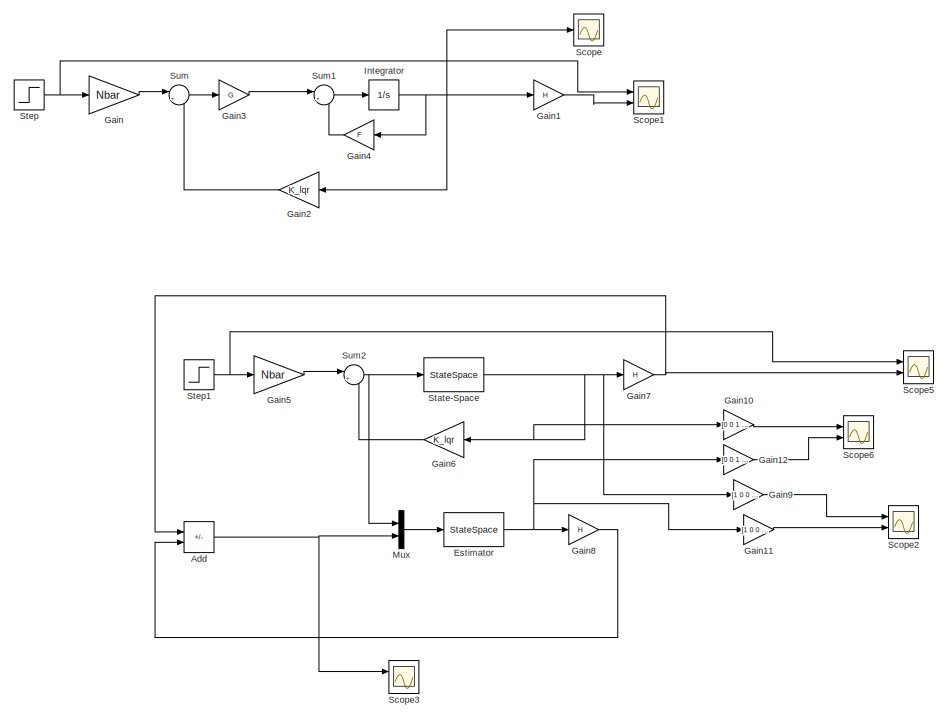
[diagram: root canvas - part 1/3, top left region]
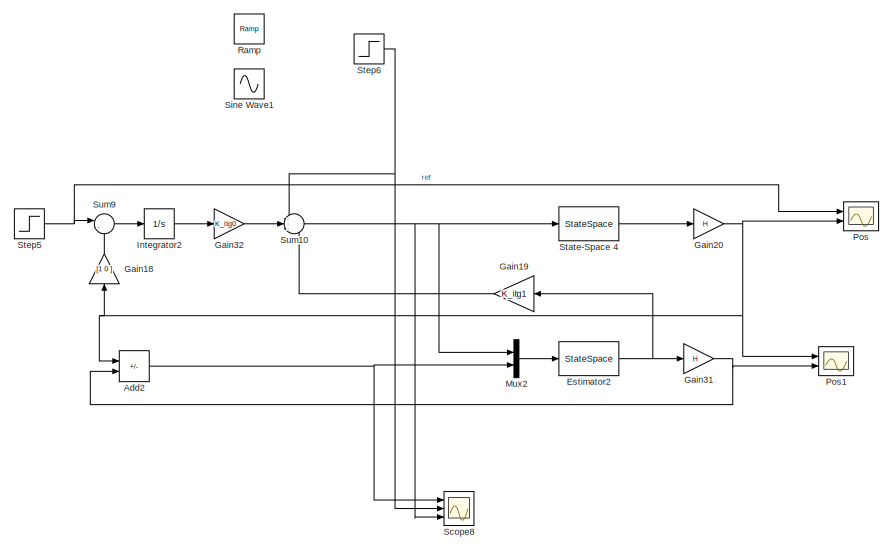
[diagram: root canvas - part 2/3, top right region]
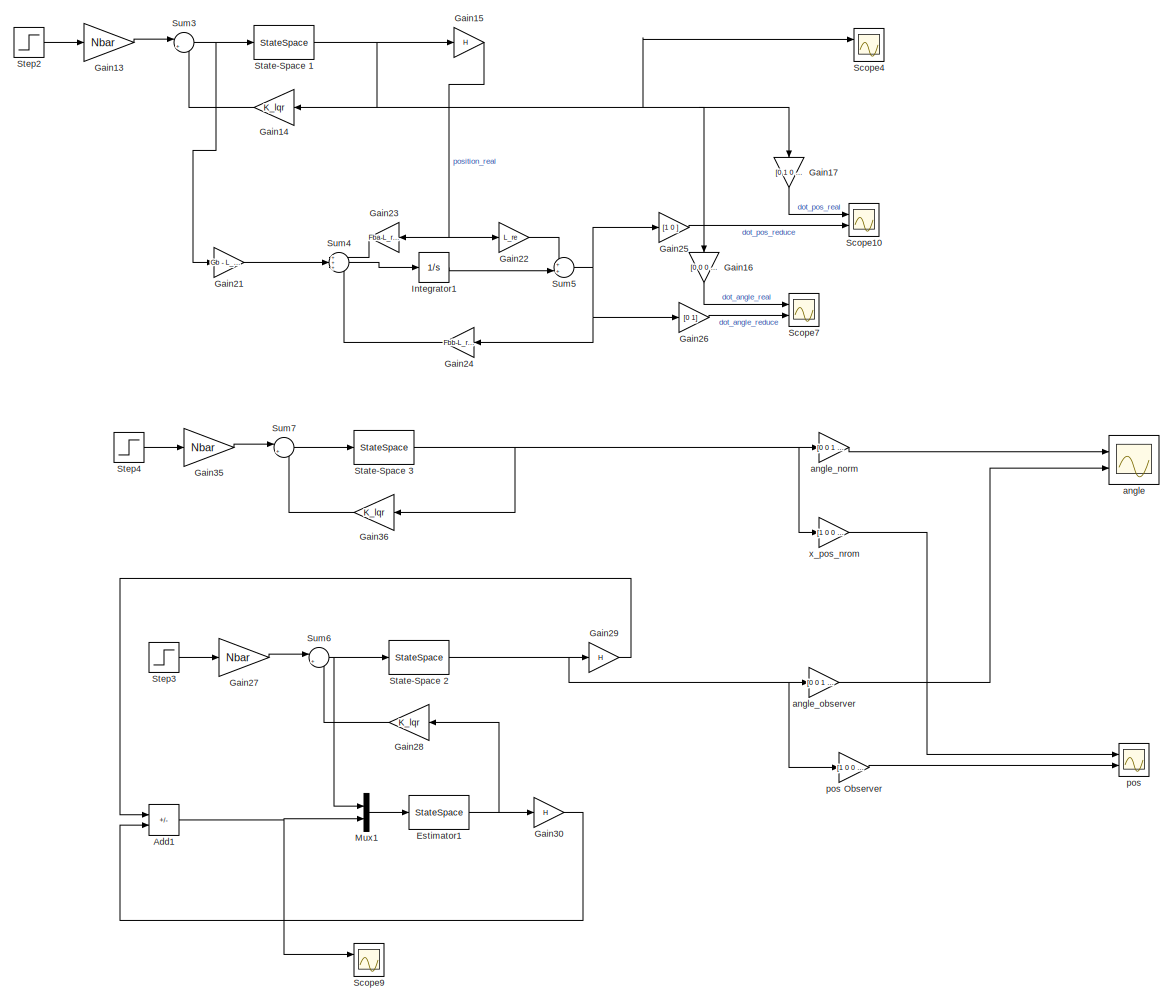
[diagram: root canvas - part 3/3, bottom left region]
MODEL slx_a55ec6fa7b17
KIND model
CONFIG AbsTol = auto
CONFIG EnableMultiTasking = off
CONFIG FixedStep = auto
CONFIG MaxStep = auto
CONFIG MinStep = auto
CONFIG RelTol = 1e-3
CONFIG SampleTimeConstraint = Unconstrained
CONFIG Solver = VariableStepAuto
CONFIG SolverName = VariableStepAuto
CONFIG StartTime = 0.0
CONFIG StopTime = 5
BLOCK [StateSpace]  Estimator
  A = F
  B = [G L]
  C = eye(4)
  D = zeros(4,3)
  InitialCondition = [5 0 1 0]
  Ports = [1, 1]
BLOCK [StateSpace]  Estimator1
  A = F
  B = [G L]
  C = eye(4)
  D = zeros(4,3)
  InitialCondition = [0 0 0 0]
  Ports = [1, 1]
BLOCK [StateSpace]  Estimator2
  A = F
  B = [G L]
  C = eye(4)
  D = zeros(4,3)
  InitialCondition = [0 0 0 0]
  Ports = [1, 1]
BLOCK [StateSpace]  State-Space 
  A = F
  B = G
  C = eye(4)
  D = zeros(4,1)
  InitialCondition = [0 0 0 0]
  Ports = [1, 1]
BLOCK [StateSpace]  State-Space 1
  A = F
  B = G
  C = eye(4)
  D = zeros(4,1)
  InitialCondition = [0 0 0 0]
  Ports = [1, 1]
BLOCK [StateSpace]  State-Space 2
  A = F
  B = G
  C = eye(4)
  D = zeros(4,1)
  InitialCondition = [1 0 0 0]
  Ports = [1, 1]
BLOCK [StateSpace]  State-Space 3
  A = F
  B = G
  C = eye(4)
  D = zeros(4,1)
  InitialCondition = [0 0 0 0]
  Ports = [1, 1]
BLOCK [StateSpace]  State-Space 4
  A = F
  B = G
  C = [1 0 0 0; 0 1 0 0; 0 0 1 0; 0 0 1 0]
  D = zeros(4,1)
  InitialCondition = [0 0 0 0]
  Ports = [1, 1]
BLOCK [Sum] Add
  IconShape = rectangular
  Inputs = +-
  Ports = [2, 1]
BLOCK [Sum] Add1
  IconShape = rectangular
  Inputs = +-
  Ports = [2, 1]
BLOCK [Sum] Add2
  IconShape = rectangular
  Inputs = +-
  Ports = [2, 1]
BLOCK [Gain] Gain
  Gain = Nbar
BLOCK [Gain] Gain1
  Gain = H
  Multiplication = Matrix(K*u)
BLOCK [Gain] Gain10
  Gain = [0 0 1 0 ]
  Multiplication = Matrix(K*u)
BLOCK [Gain] Gain11
  Gain = [1 0 0 0]
  Multiplication = Matrix(K*u)
BLOCK [Gain] Gain12
  Gain = [0 0 1 0 ]
  Multiplication = Matrix(K*u)
BLOCK [Gain] Gain13
  Gain = Nbar
BLOCK [Gain] Gain14
  Gain = K_lqr
  Multiplication = Matrix(K*u)
  NameLocation = top
BLOCK [Gain] Gain15
  Gain = H
  Multiplication = Matrix(K*u)
BLOCK [Gain] Gain16
  Gain = [0 0 0 1]
  Multiplication = Matrix(K*u)
  NameLocation = left
BLOCK [Gain] Gain17
  Gain = [0 1 0 0 ]
  Multiplication = Matrix(K*u)
  NameLocation = left
BLOCK [Gain] Gain18
  Gain = [1 0 ]
  Multiplication = Matrix(K*u)
  NameLocation = right
BLOCK [Gain] Gain19
  Gain = K_itg1
  Multiplication = Matrix(K*u)
  NameLocation = top
BLOCK [Gain] Gain2
  Gain = K_lqr
  Multiplication = Matrix(K*u)
  NameLocation = top
BLOCK [Gain] Gain20
  Gain = H
  Multiplication = Matrix(K*u)
BLOCK [Gain] Gain21
  Gain = Gb - L_re*Ga
  Multiplication = Matrix(K*u)
BLOCK [Gain] Gain22
  Gain = L_re
  Multiplication = Matrix(K*u)
BLOCK [Gain] Gain23
  Gain = Fba-L_re*Faa
  Multiplication = Matrix(K*u)
  NameLocation = top
BLOCK [Gain] Gain24
  Gain = Fbb-L_re*Fab
  Multiplication = Matrix(K*u)
  NameLocation = top
BLOCK [Gain] Gain25
  Gain = [1 0 ]
  Multiplication = Matrix(K*u)
BLOCK [Gain] Gain26
  Gain = [0 1]
  Multiplication = Matrix(K*u)
BLOCK [Gain] Gain27
  Gain = Nbar
BLOCK [Gain] Gain28
  Gain = K_lqr
  Multiplication = Matrix(K*u)
  NameLocation = top
BLOCK [Gain] Gain29
  Gain = H
  Multiplication = Matrix(K*u)
BLOCK [Gain] Gain3
  Gain = G
  Multiplication = Matrix(K*u)
BLOCK [Gain] Gain30
  Gain = H
  Multiplication = Matrix(K*u)
BLOCK [Gain] Gain31
  Gain = H
  Multiplication = Matrix(K*u)
BLOCK [Gain] Gain32
  Gain = K_itg0
  Multiplication = Matrix(K*u)
BLOCK [Gain] Gain35
  Gain = Nbar
BLOCK [Gain] Gain36
  Gain = K_lqr
  Multiplication = Matrix(K*u)
  NameLocation = top
BLOCK [Gain] Gain4
  Gain = F
  Multiplication = Matrix(K*u)
  NameLocation = top
BLOCK [Gain] Gain5
  Gain = Nbar
BLOCK [Gain] Gain6
  Gain = K_lqr
  Multiplication = Matrix(K*u)
  NameLocation = top
BLOCK [Gain] Gain7
  Gain = H
  Multiplication = Matrix(K*u)
BLOCK [Gain] Gain8
  Gain = H
  Multiplication = Matrix(K*u)
BLOCK [Gain] Gain9
  Gain = [1 0 0 0]
  Multiplication = Matrix(K*u)
BLOCK [Integrator] Integrator
  Ports = [1, 1]
BLOCK [Integrator] Integrator1
  Ports = [1, 1]
BLOCK [Integrator] Integrator2
  Ports = [1, 1]
BLOCK [Mux] Mux
  DisplayOption = bar
  Inputs = 2
  Ports = [2, 1]
BLOCK [Mux] Mux1
  DisplayOption = bar
  Inputs = 2
  Ports = [2, 1]
BLOCK [Mux] Mux2
  DisplayOption = bar
  Inputs = 2
  Ports = [2, 1]
BLOCK [Scope] Pos
  Floating = off
  NumInputPorts = 2
  Ports = [2]
  ScopeSpecificationString = Simulink.scopes.TimeScopeBlockCfg('CurrentConfiguration', extmgr.ConfigurationSet(extmgr.Configuration('Core','General UI',true,'FigureColor',[1 1 1]),extmgr.Configuration('Core','Source UI',true),extmgr.Configuration('Sources','WiredSimulink',true,'DataLoggingVariableName','ScopeData8'),extmgr.Configuration('Visuals','Time Domain',true,'SerializedDisplays',{struct('MinYLimReal','4.59875','MaxYLim...<+1893ch>
BLOCK [Scope] Pos1
  Floating = off
  NumInputPorts = 2
  Ports = [2]
  ScopeSpecificationString = Simulink.scopes.TimeScopeBlockCfg('CurrentConfiguration', extmgr.ConfigurationSet(extmgr.Configuration('Core','General UI',true,'FigureColor',[1 1 1]),extmgr.Configuration('Core','Source UI',true),extmgr.Configuration('Sources','WiredSimulink',true,'DataLoggingVariableName','ScopeData1'),extmgr.Configuration('Visuals','Time Domain',true,'SerializedDisplays',{struct('MinYLimReal','-1821545389564943...<+2043ch>
BLOCK [Reference] Ramp  REF=simulink/Sources/Ramp
  Ports = [0, 1]
  SourceBlock = simulink/Sources/Ramp
  SourceProductBaseCode = SL
  SourceType = Ramp
BLOCK [Scope] Scope
  Floating = off
  NumInputPorts = 1
  Ports = [1]
  ScopeSpecificationString = Simulink.scopes.TimeScopeBlockCfg('CurrentConfiguration', extmgr.ConfigurationSet(extmgr.Configuration('Core','General UI',true),extmgr.Configuration('Core','Source UI',true),extmgr.Configuration('Sources','WiredSimulink',true),extmgr.Configuration('Visuals','Time Domain',true,'SerializedDisplays',{struct('MinYLimReal','-9.64899','MaxYLimReal','4.57904','YLabelReal','','MinYLimMag','0.00000','MaxY...<+1594ch>
BLOCK [Scope] Scope1
  Floating = off
  NumInputPorts = 2
  Ports = [2]
  ScopeSpecificationString = Simulink.scopes.TimeScopeBlockCfg('CurrentConfiguration', extmgr.ConfigurationSet(extmgr.Configuration('Core','General UI',true,'FigureColor',[1 1 1]),extmgr.Configuration('Core','Source UI',true),extmgr.Configuration('Sources','WiredSimulink',true,'DataLoggingVariableName','ScopeData1'),extmgr.Configuration('Visuals','Time Domain',true,'SerializedDisplays',{struct('MinYLimReal','-1.03435','MaxYLi...<+2226ch>
BLOCK [Scope] Scope10
  Floating = off
  NumInputPorts = 2
  Ports = [2]
  ScopeSpecificationString = Simulink.scopes.TimeScopeBlockCfg('CurrentConfiguration', extmgr.ConfigurationSet(extmgr.Configuration('Core','General UI',true,'FigureColor',[1 1 1]),extmgr.Configuration('Core','Source UI',true),extmgr.Configuration('Sources','WiredSimulink',true,'DataLoggingVariableName','ScopeData2'),extmgr.Configuration('Visuals','Time Domain',true,'SerializedDisplays',{struct('MinYLimReal','-19.36266','MaxYL...<+1906ch>
BLOCK [Scope] Scope2
  Floating = off
  NumInputPorts = 2
  Ports = [2]
  ScopeSpecificationString = Simulink.scopes.TimeScopeBlockCfg('CurrentConfiguration', extmgr.ConfigurationSet(extmgr.Configuration('Core','General UI',true,'FigureColor',[1 1 1]),extmgr.Configuration('Core','Source UI',true),extmgr.Configuration('Sources','WiredSimulink',true,'DataLoggingVariableName','ScopeData4'),extmgr.Configuration('Visuals','Time Domain',true,'SerializedDisplays',{struct('MinYLimReal','-2.32078','MaxYLi...<+1861ch>
BLOCK [Scope] Scope3
  Floating = off
  NumInputPorts = 2
  Ports = [2]
  ScopeSpecificationString = Simulink.scopes.TimeScopeBlockCfg('CurrentConfiguration', extmgr.ConfigurationSet(extmgr.Configuration('Core','General UI',true,'FigureColor',[1 1 1]),extmgr.Configuration('Core','Source UI',true),extmgr.Configuration('Sources','WiredSimulink',true,'DataLoggingVariableName','ScopeData1'),extmgr.Configuration('Visuals','Time Domain',true,'SerializedDisplays',{struct('MinYLimReal','-5.74672','MaxYLi...<+1868ch>
BLOCK [Scope] Scope4
  Floating = off
  NumInputPorts = 2
  Ports = [2]
  ScopeSpecificationString = Simulink.scopes.TimeScopeBlockCfg('CurrentConfiguration', extmgr.ConfigurationSet(extmgr.Configuration('Core','General UI',true),extmgr.Configuration('Core','Source UI',true),extmgr.Configuration('Sources','WiredSimulink',true,'DataLoggingVariableName','ScopeData1'),extmgr.Configuration('Visuals','Time Domain',true,'SerializedDisplays',{struct('MinYLimReal','-0.0000000003','MaxYLimReal','0.0000000...<+1623ch>
BLOCK [Scope] Scope5
  Floating = off
  NumInputPorts = 2
  Ports = [2]
  ScopeSpecificationString = Simulink.scopes.TimeScopeBlockCfg('CurrentConfiguration', extmgr.ConfigurationSet(extmgr.Configuration('Core','General UI',true,'FigureColor',[1 1 1]),extmgr.Configuration('Core','Source UI',true),extmgr.Configuration('Sources','WiredSimulink',true,'DataLoggingVariableName','ScopeData3'),extmgr.Configuration('Visuals','Time Domain',true,'SerializedDisplays',{struct('MinYLimReal','-5.18347','MaxYLi...<+2146ch>
BLOCK [Scope] Scope6
  Floating = off
  NumInputPorts = 2
  Ports = [2]
  ScopeSpecificationString = Simulink.scopes.TimeScopeBlockCfg('CurrentConfiguration', extmgr.ConfigurationSet(extmgr.Configuration('Core','General UI',true,'FigureColor',[1 1 1]),extmgr.Configuration('Core','Source UI',true),extmgr.Configuration('Sources','WiredSimulink',true,'DataLoggingVariableName','ScopeData5'),extmgr.Configuration('Visuals','Time Domain',true,'SerializedDisplays',{struct('MinYLimReal','-4.76509','MaxYLi...<+1885ch>
BLOCK [Scope] Scope7
  Floating = off
  NumInputPorts = 2
  Ports = [2]
  ScopeSpecificationString = Simulink.scopes.TimeScopeBlockCfg('CurrentConfiguration', extmgr.ConfigurationSet(extmgr.Configuration('Core','General UI',true,'FigureColor',[1 1 1]),extmgr.Configuration('Core','Source UI',true),extmgr.Configuration('Sources','WiredSimulink',true,'DataLoggingVariableName','ScopeData5'),extmgr.Configuration('Visuals','Time Domain',true,'SerializedDisplays',{struct('MinYLimReal','-97.52216','MaxYL...<+1910ch>
BLOCK [Scope] Scope8
  Floating = off
  NumInputPorts = 3
  Ports = [3]
  ScopeSpecificationString = Simulink.scopes.TimeScopeBlockCfg('CurrentConfiguration', extmgr.ConfigurationSet(extmgr.Configuration('Core','General UI',true,'FigureColor',[1 1 1]),extmgr.Configuration('Core','Source UI',true),extmgr.Configuration('Sources','WiredSimulink',true,'DataLoggingVariableName','ScopeData3'),extmgr.Configuration('Visuals','Time Domain',true,'SerializedDisplays',{struct('MinYLimReal','-193.5581','MaxYL...<+1913ch>
BLOCK [Scope] Scope9
  Floating = off
  NumInputPorts = 2
  Ports = [2]
  ScopeSpecificationString = Simulink.scopes.TimeScopeBlockCfg('CurrentConfiguration', extmgr.ConfigurationSet(extmgr.Configuration('Core','General UI',true,'FigureColor',[1 1 1]),extmgr.Configuration('Core','Source UI',true),extmgr.Configuration('Sources','WiredSimulink',true,'DataLoggingVariableName','ScopeData7'),extmgr.Configuration('Visuals','Time Domain',true,'SerializedDisplays',{struct('MinYLimReal','-5.74672','MaxYLi...<+1868ch>
BLOCK [Sin] Sine Wave1
  Amplitude = 50
  Frequency = 10
  Ports = [0, 1]
  SampleTime = 0
BLOCK [Step] Step
  After = [1 0 0 0]
  SampleTime = 0
  Time = 0
BLOCK [Step] Step1
  After = 5
  SampleTime = 0
  Time = 0
BLOCK [Step] Step2
  After = 5
  SampleTime = 0
  Time = 0
BLOCK [Step] Step3
  After = 5
  SampleTime = 0
  Time = 0
BLOCK [Step] Step4
  After = 5
  SampleTime = 0
  Time = 0
BLOCK [Step] Step5
  After = 5
  SampleTime = 0
  Time = 0
BLOCK [Step] Step6
  After = 50
  SampleTime = 0
BLOCK [Sum] Sum
  Inputs = |+-
  Ports = [2, 1]
BLOCK [Sum] Sum1
  Inputs = |++
  Ports = [2, 1]
BLOCK [Sum] Sum10
  Inputs = ---
  Ports = [3, 1]
BLOCK [Sum] Sum2
  Inputs = |+-
  Ports = [2, 1]
BLOCK [Sum] Sum3
  Inputs = |+-
  Ports = [2, 1]
BLOCK [Sum] Sum4
  Inputs = +++
  Ports = [3, 1]
BLOCK [Sum] Sum5
  Inputs = ++|
  Ports = [2, 1]
BLOCK [Sum] Sum6
  Inputs = |+-
  Ports = [2, 1]
BLOCK [Sum] Sum7
  Inputs = |+-
  Ports = [2, 1]
BLOCK [Sum] Sum9
  Inputs = |-+
  Ports = [2, 1]
BLOCK [Scope] angle
  Floating = off
  NumInputPorts = 2
  Ports = [2]
  ScopeSpecificationString = Simulink.scopes.TimeScopeBlockCfg('CurrentConfiguration', extmgr.ConfigurationSet(extmgr.Configuration('Core','General UI',true,'FigureColor',[1 1 1]),extmgr.Configuration('Core','Source UI',true),extmgr.Configuration('Sources','WiredSimulink',true,'DataLoggingVariableName','ScopeData4'),extmgr.Configuration('Visuals','Time Domain',true,'SerializedDisplays',{struct('MinYLimReal','-26.25014','MaxYL...<+1905ch>
BLOCK [Gain] angle_norm
  Gain = [0 0 1 0 ]
  Multiplication = Matrix(K*u)
BLOCK [Gain] angle_observer
  Gain = [0 0 1 0 ]
  Multiplication = Matrix(K*u)
BLOCK [Scope] pos
  Floating = off
  NumInputPorts = 2
  Ports = [2]
  ScopeSpecificationString = Simulink.scopes.TimeScopeBlockCfg('CurrentConfiguration', extmgr.ConfigurationSet(extmgr.Configuration('Core','General UI',true,'FigureColor',[1 1 1]),extmgr.Configuration('Core','Source UI',true),extmgr.Configuration('Sources','WiredSimulink',true,'DataLoggingVariableName','ScopeData6'),extmgr.Configuration('Visuals','Time Domain',true,'SerializedDisplays',{struct('MinYLimReal','-2.25939','MaxYLi...<+1897ch>
BLOCK [Gain] pos Observer
  Gain = [1 0 0 0]
  Multiplication = Matrix(K*u)
BLOCK [Gain] x_pos_nrom
  Gain = [1 0 0 0]
  Multiplication = Matrix(K*u)
NET  Estimator1:1 -> Gain28:1, Gain30:1
NET  Estimator2:1 -> Gain19:1, Gain31:1
NET  Estimator:1 -> Gain11:1, Gain12:1, Gain8:1
NET  State-Space 1:1 -> Gain14:1, Gain15:1, Gain16:1, Gain17:1, Scope4:1
NET  State-Space 2:1 -> Gain29:1, angle_observer:1, pos Observer:1
NET  State-Space 3:1 -> Gain36:1, angle_norm:1, x_pos_nrom:1
LINE  State-Space 4:1 -> Gain20:1
NET  State-Space :1 -> Gain10:1, Gain6:1, Gain7:1, Gain9:1
NET Add1:1 -> Mux1:2, Scope9:1
NET Add2:1 -> Mux2:2, Scope8:1
NET Add:1 -> Mux:2, Scope3:1
LINE Gain10:1 -> Scope6:1
LINE Gain11:1 -> Scope2:2
LINE Gain12:1 -> Scope6:2
LINE Gain13:1 -> Sum3:1
LINE Gain14:1 -> Sum3:2
NET Gain15:1 -> Gain22:1, Gain23:1
LINE Gain16:1 -> Scope7:1
LINE Gain17:1 -> Scope10:1
LINE Gain18:1 -> Sum9:2
LINE Gain19:1 -> Sum10:3
LINE Gain1:1 -> Scope1:2
NET Gain20:1 -> Add2:1, Gain18:1, Pos1:1, Pos:2
LINE Gain21:1 -> Sum4:2
LINE Gain22:1 -> Sum5:1
LINE Gain23:1 -> Sum4:1
LINE Gain24:1 -> Sum4:3
LINE Gain25:1 -> Scope10:2
LINE Gain26:1 -> Scope7:2
LINE Gain27:1 -> Sum6:1
LINE Gain28:1 -> Sum6:2
LINE Gain29:1 -> Add1:1
LINE Gain2:1 -> Sum:2
LINE Gain30:1 -> Add1:2
NET Gain31:1 -> Add2:2, Pos1:2
LINE Gain32:1 -> Sum10:2
LINE Gain35:1 -> Sum7:1
LINE Gain36:1 -> Sum7:2
LINE Gain3:1 -> Sum1:1
LINE Gain4:1 -> Sum1:2
LINE Gain5:1 -> Sum2:1
LINE Gain6:1 -> Sum2:2
NET Gain7:1 -> Add:1, Scope5:2
LINE Gain8:1 -> Add:2
LINE Gain9:1 -> Scope2:1
LINE Gain:1 -> Sum:1
LINE Integrator1:1 -> Sum5:2
LINE Integrator2:1 -> Gain32:1
NET Integrator:1 -> Gain1:1, Gain2:1, Gain4:1, Scope:1
LINE Mux1:1 ->  Estimator1:1
LINE Mux2:1 ->  Estimator2:1
LINE Mux:1 ->  Estimator:1
NET Step1:1 -> Gain5:1, Scope5:1
LINE Step2:1 -> Gain13:1
LINE Step3:1 -> Gain27:1
LINE Step4:1 -> Gain35:1
NET Step5:1 -> Pos:1, Sum9:1
NET Step6:1 -> Scope8:2, Sum10:1
NET Step:1 -> Gain:1, Scope1:1
NET Sum10:1 ->  State-Space 4:1, Mux2:1, Scope8:3
LINE Sum1:1 -> Integrator:1
NET Sum2:1 ->  State-Space :1, Mux:1
NET Sum3:1 ->  State-Space 1:1, Gain21:1
LINE Sum4:1 -> Integrator1:1
NET Sum5:1 -> Gain24:1, Gain25:1, Gain26:1
NET Sum6:1 ->  State-Space 2:1, Mux1:1
LINE Sum7:1 ->  State-Space 3:1
LINE Sum9:1 -> Integrator2:1
LINE Sum:1 -> Gain3:1
LINE angle_norm:1 -> angle:1
LINE angle_observer:1 -> angle:2
LINE pos Observer:1 -> pos:2
LINE x_pos_nrom:1 -> pos:1
note: NET lines group one-source signal fan-out (src -> all destinations, sorted); 1:1 wires keep LINE
